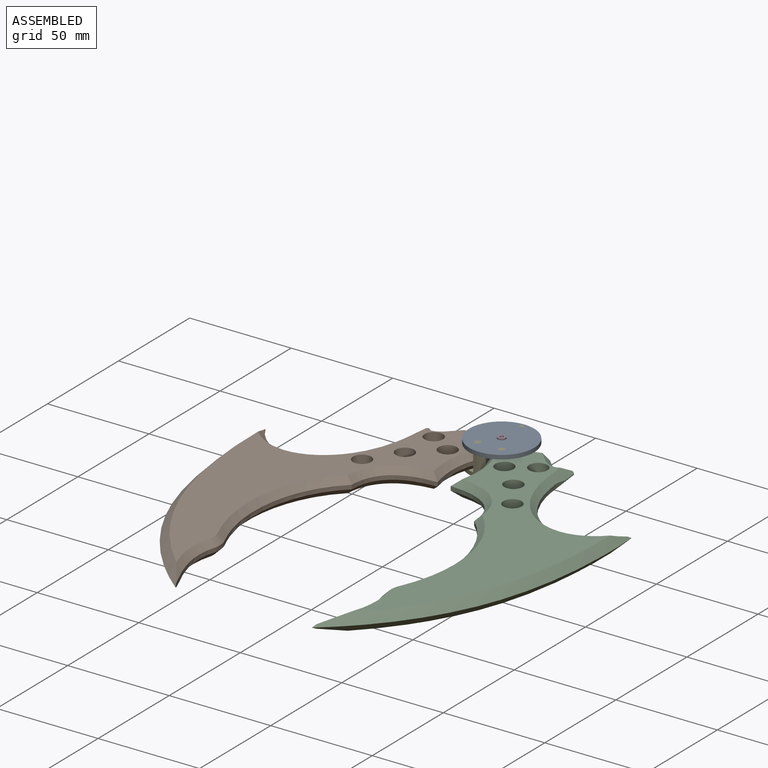
[diagram: assembled view]
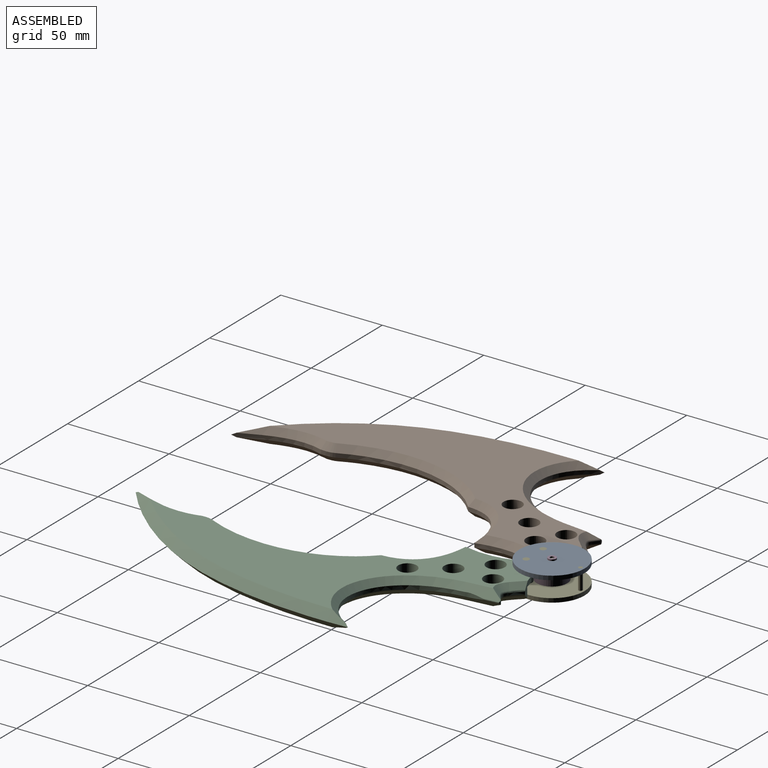
[diagram: assembled view, second angle]
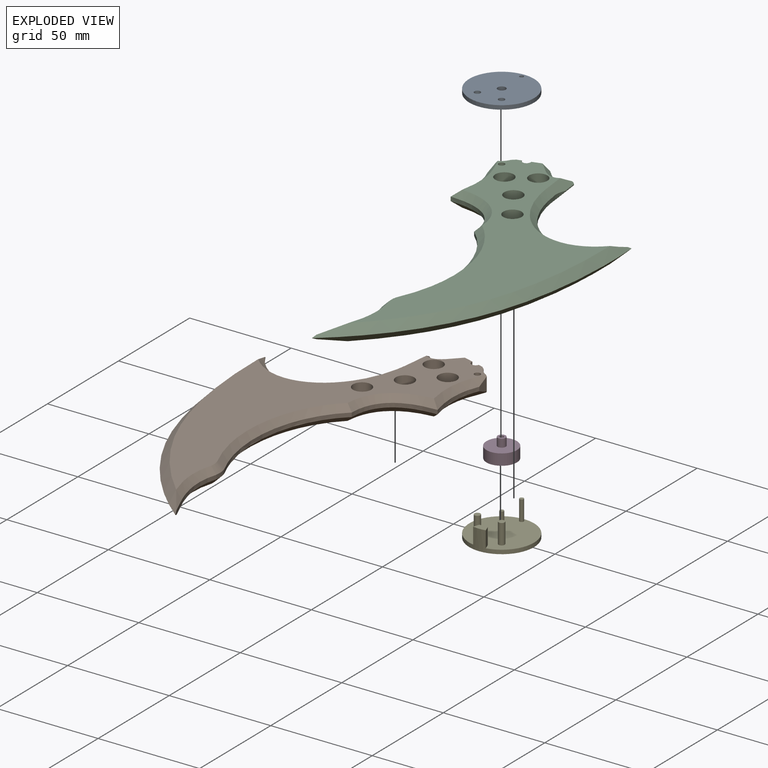
[diagram: exploded view]
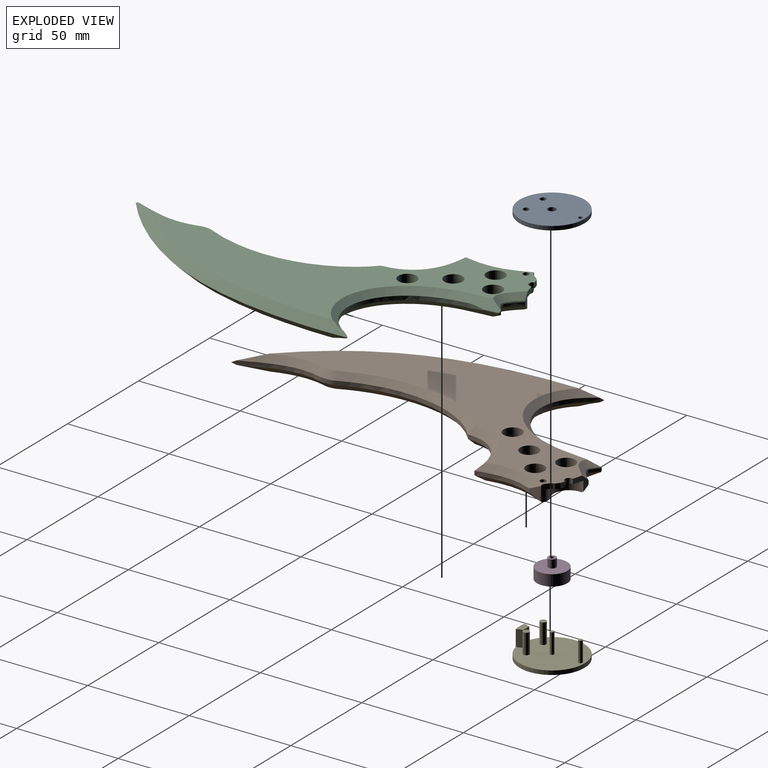
[diagram: exploded view, second angle]
ASSEMBLY  parts=5 mates=5
PART A: 7 faces, bbox 32x32x2 mm
  f0: cylinder r=16mm len=32mm, axis (0,0,1), area 201.1mm2, adj f1,f2
  f1: plane 32x32mm, normal (0,0,-1), area 774.4mm2, adj f0,f3,f4,f5,f6
  f2: plane 32x32mm, normal (0,0,1), area 774.4mm2, adj f0,f3,f4,f5,f6
  f3: cylinder r=1mm len=2mm, axis (0,0,-1), area 12.6mm2, adj f1,f2
  f4: cylinder r=1.5mm len=3mm, axis (0,0,-1), area 18.8mm2, adj f1,f2
  f5: cylinder r=1.5mm len=3mm, axis (0,0,-1), area 18.8mm2, adj f1,f2
  f6: cylinder r=2mm len=4mm, axis (0,0,-1), area 25.1mm2, adj f1,f2
PART B: 50 faces, bbox 185.6x104.1x9.9 mm
  f0: plane 8.3x7.49mm, normal (1,0,0), area 25.6mm2, adj f2,f7,f9,f12,f19,f39,f40,f42
  f1: plane 2.5x2.38mm, normal (1,0,0), area 5.9mm2, adj f2,f4,f19,f49
  f2: plane 17.4x7.5mm, normal (0,0,-1), area 82.2mm2, adj f0,f1,f4,f7,f46,f47,f48,f49
  f3: plane 6.82x5.34mm, normal (0.32,-0.95,0), area 24.7mm2, adj f5,f8,f11,f46
  f4: plane 2.5x1.98mm, normal (0.9,-0.43,0), area 5.5mm2, adj f1,f2,f19,f46
  f5: bspline ~37.56x10.83mm, area 129.5mm2, adj f3,f11,f19,f34,f46
  f6: plane 171.03x78.62mm, normal (0,0,-1), area 4250.9mm2, adj f7,f8,f9,f20,f21,f22,f23,f24
  f7: cylinder r=7.5mm len=13.58mm, axis (0,0,-1), area 103.5mm2, adj f0,f2,f6,f9,f47
  f8: bspline ~37.56x10.83mm, area 129.5mm2, adj f3,f6,f11,f30,f46
  f9: bspline ~14.45x13.37mm, area 61.2mm2, adj f0,f6,f7,f36,f37,f40
  f10: extruded ~8.72x2.28mm, area 11.2mm2, adj f14,f35,f36,f45
  f11: extruded ~26.97x6.88mm, area 56.7mm2, adj f3,f5,f8,f18
  f12: extruded ~9.03x8.11mm, area 15.8mm2, adj f0,f13,f40,f42
  f13: plane 2.07x1.17mm, normal (0.92,-0.39,0), area 2.6mm2, adj f12,f41,f43,f44
  f14: extruded ~46.13x44.13mm, area 159.3mm2, adj f10,f25,f26,f35,f36
  f15: extruded ~35.66x17.73mm, area 79.5mm2, adj f16,f25,f26,f27,f31
  f16: extruded ~6.23x2.48mm, area 13.6mm2, adj f15,f17,f28,f32
  f17: extruded ~73.6x17.2mm, area 158.5mm2, adj f16,f18,f29,f33
  f18: extruded ~28.5x20.78mm, area 78.6mm2, adj f11,f17,f30,f34
  f19: plane 172.13x78.79mm, normal (0,0,1), area 4357.4mm2, adj f0,f1,f4,f5,f20,f21,f22,f23
  f20: cylinder r=4.5mm len=9mm, axis (0,0,1), area 226.2mm2, adj f6,f19
  f21: cylinder r=4.5mm len=9mm, axis (0,0,1), area 226.2mm2, adj f6,f19
  f22: cylinder r=4.5mm len=9mm, axis (0,0,1), area 226.2mm2, adj f6,f19
  f23: cylinder r=4.5mm len=9mm, axis (0,0,1), area 226.2mm2, adj f6,f19
  f24: cylinder r=1.5mm len=8mm, axis (0,0,1), area 75.4mm2, adj f6,f19
  f25: bspline ~133.25x101.36mm, area 840.4mm2, adj f14,f15,f19,f26,f31,f35
  f26: bspline ~129.69x100.58mm, area 840.5mm2, adj f6,f14,f15,f25,f27,f36
  f27: bspline ~35.95x19.34mm, area 140mm2, adj f6,f15,f26,f28
  f28: bspline ~7.14x4.95mm, area 24.9mm2, adj f6,f16,f27,f29
  f29: bspline ~80.81x21.76mm, area 341.6mm2, adj f6,f17,f28,f30
  f30: bspline ~32.12x23.78mm, area 165.9mm2, adj f6,f8,f18,f29
  f31: bspline ~35.95x19.34mm, area 140mm2, adj f15,f19,f25,f32
  f32: bspline ~6.8x4.83mm, area 24.8mm2, adj f16,f19,f31,f33
  f33: bspline ~80.84x21.79mm, area 341.6mm2, adj f17,f19,f32,f34
  f34: bspline ~32.12x23.78mm, area 165.9mm2, adj f5,f18,f19,f33
  f35: bspline ~67.14x51.84mm, area 400.1mm2, adj f10,f14,f19,f25,f38,f39,f43,f44
  f36: bspline ~67.14x51.84mm, area 400.2mm2, adj f6,f9,f10,f14,f26,f37,f41,f44
  f37: plane 2.21x2.16mm, normal (0.65,-0.27,-0.71), area 2.3mm2, adj f9,f36,f41
  f38: plane 2.21x2.16mm, normal (0.65,-0.27,0.71), area 2.3mm2, adj f35,f39,f43
  f39: bspline ~13.51x12.36mm, area 61.8mm2, adj f0,f19,f35,f38,f42
  f40: bspline ~10.09x9.12mm, area 10.8mm2, adj f0,f9,f12,f41
  f41: cylinder r=1mm len=2.65mm, axis (0.39,0.92,0), area 2mm2, adj f13,f36,f37,f40,f44
  f42: bspline ~10.41x9.52mm, area 10.8mm2, adj f0,f12,f39,f43
  f43: cylinder r=1mm len=2.65mm, axis (0.39,0.92,0), area 2mm2, adj f13,f35,f38,f42,f44
  f44: cylinder r=1mm len=2.16mm, axis (0,0,-1), area 2.1mm2, adj f13,f35,f36,f41,f43,f45
  f45: bspline ~13.8x2.68mm, area 5.9mm2, adj f10,f35,f36,f44
  f46: cylinder r=7.5mm len=8mm, axis (0,0,-1), area 24.6mm2, adj f2,f3,f4,f5,f6,f8,f19,f48
  f47: plane 5.5x1.99mm, normal (0.9,0.43,0), area 12.2mm2, adj f2,f6,f7,f48
  f48: cylinder r=2.5mm len=5.5mm, axis (0,0,-1), area 10.3mm2, adj f2,f6,f46,f47
  f49: cylinder r=2mm len=4mm, axis (0,0,-1), area 15.7mm2, adj f0,f1,f2,f19
PART C: 50 faces, bbox 185.6x104.1x9.9 mm
  f0: plane 8.3x7.49mm, normal (-1,0,0), area 25.6mm2, adj f2,f7,f9,f12,f19,f39,f40,f42
  f1: plane 2.5x2.38mm, normal (-1,0,0), area 5.9mm2, adj f2,f4,f19,f49
  f2: plane 17.4x7.5mm, normal (0,0,-1), area 82.2mm2, adj f0,f1,f4,f7,f46,f47,f48,f49
  f3: plane 6.82x5.34mm, normal (-0.32,-0.95,0), area 24.7mm2, adj f5,f8,f11,f46
  f4: plane 2.5x1.98mm, normal (-0.9,-0.43,0), area 5.5mm2, adj f1,f2,f19,f46
  f5: bspline ~37.56x10.83mm, area 129.5mm2, adj f3,f11,f19,f34,f46
  f6: plane 170.42x77.71mm, normal (0,0,-1), area 4250.9mm2, adj f7,f8,f9,f20,f21,f22,f23,f24
  f7: cylinder r=7.5mm len=13.58mm, axis (0,0,-1), area 103.5mm2, adj f0,f2,f6,f9,f47
  f8: bspline ~37.56x10.83mm, area 129.5mm2, adj f3,f6,f11,f30,f46
  f9: bspline ~14.45x13.37mm, area 61.2mm2, adj f0,f6,f7,f36,f37,f40
  f10: extruded ~8.72x2.28mm, area 11.2mm2, adj f14,f35,f36,f45
  f11: extruded ~26.97x6.88mm, area 56.7mm2, adj f3,f5,f8,f18
  f12: extruded ~9.03x8.11mm, area 15.8mm2, adj f0,f13,f40,f42
  f13: plane 2.07x1.17mm, normal (-0.92,-0.39,0), area 2.6mm2, adj f12,f41,f43,f44
  f14: extruded ~46.13x44.13mm, area 159.1mm2, adj f10,f25,f26,f35,f36
  f15: extruded ~35.66x17.73mm, area 79.5mm2, adj f16,f25,f26,f27,f31
  f16: extruded ~6.23x2.48mm, area 13.6mm2, adj f15,f17,f28,f32
  f17: extruded ~73.6x17.2mm, area 158.5mm2, adj f16,f18,f29,f33
  f18: extruded ~28.5x20.78mm, area 78.6mm2, adj f11,f17,f30,f34
  f19: plane 171.67x77.86mm, normal (0,0,1), area 4357.4mm2, adj f0,f1,f4,f5,f20,f21,f22,f23
  f20: cylinder r=4.5mm len=9mm, axis (0,0,1), area 226.2mm2, adj f6,f19
  f21: cylinder r=4.5mm len=9mm, axis (0,0,1), area 226.2mm2, adj f6,f19
  f22: cylinder r=4.5mm len=9mm, axis (0,0,1), area 226.2mm2, adj f6,f19
  f23: cylinder r=4.5mm len=9mm, axis (0,0,1), area 226.2mm2, adj f6,f19
  f24: cylinder r=1.5mm len=8mm, axis (0,0,1), area 75.4mm2, adj f6,f19
  f25: bspline ~133.25x101.36mm, area 840.4mm2, adj f14,f15,f19,f26,f31,f35
  f26: bspline ~123.88x95.73mm, area 840.7mm2, adj f6,f14,f15,f25,f27,f36
  f27: bspline ~35.95x19.34mm, area 140mm2, adj f6,f15,f26,f28
  f28: bspline ~7.14x4.95mm, area 24.9mm2, adj f6,f16,f27,f29
  f29: bspline ~77.16x20.19mm, area 341.6mm2, adj f6,f17,f28,f30
  f30: bspline ~33.95x25.96mm, area 165.9mm2, adj f6,f8,f18,f29
  f31: bspline ~35.95x19.34mm, area 140mm2, adj f15,f19,f25,f32
  f32: bspline ~6.8x4.83mm, area 24.9mm2, adj f16,f19,f31,f33
  f33: bspline ~80.84x21.79mm, area 341.6mm2, adj f17,f19,f32,f34
  f34: bspline ~33.95x25.96mm, area 165.9mm2, adj f5,f18,f19,f33
  f35: bspline ~67.14x51.84mm, area 398.9mm2, adj f10,f14,f19,f25,f38,f39,f43,f44
  f36: bspline ~67.14x51.84mm, area 399mm2, adj f6,f9,f10,f14,f26,f37,f41,f44
  f37: plane 2.21x2.16mm, normal (-0.65,-0.27,-0.71), area 2.3mm2, adj f9,f36,f41
  f38: plane 2.21x2.16mm, normal (-0.65,-0.27,0.71), area 2.3mm2, adj f35,f39,f43
  f39: bspline ~14.45x13.37mm, area 61.8mm2, adj f0,f19,f35,f38,f42
  f40: bspline ~10.09x9.12mm, area 10.8mm2, adj f0,f9,f12,f41
  f41: cylinder r=1mm len=2.65mm, axis (-0.39,0.92,0), area 2mm2, adj f13,f36,f37,f40,f44
  f42: bspline ~10.41x9.52mm, area 10.8mm2, adj f0,f12,f39,f43
  f43: cylinder r=1mm len=2.65mm, axis (-0.39,0.92,0), area 2mm2, adj f13,f35,f38,f42,f44
  f44: cylinder r=1mm len=2.16mm, axis (0,0,-1), area 2.1mm2, adj f13,f35,f36,f41,f43,f45
  f45: bspline ~13.8x2.68mm, area 5.9mm2, adj f10,f35,f36,f44
  f46: cylinder r=7.5mm len=8mm, axis (0,0,-1), area 24.6mm2, adj f2,f3,f4,f5,f6,f8,f19,f48
  f47: plane 5.5x1.99mm, normal (-0.9,0.43,0), area 12.2mm2, adj f2,f6,f7,f48
  f48: cylinder r=2.5mm len=5.5mm, axis (0,0,-1), area 10.3mm2, adj f2,f6,f46,f47
  f49: cylinder r=2mm len=4mm, axis (0,0,-1), area 15.7mm2, adj f0,f1,f2,f19
PART D: 6 faces, bbox 15x15x9.5 mm
  f0: cylinder r=7.5mm len=15mm, axis (0,0,-1), area 259.2mm2, adj f1,f2
  f1: plane 15x15mm, normal (0,0,1), area 164.1mm2, adj f0,f5
  f2: plane 15x15mm, normal (0,0,-1), area 173.6mm2, adj f0,f3
  f3: cylinder r=1mm len=9.5mm, axis (0,0,-1), area 59.7mm2, adj f2,f4
  f4: plane 4x4mm, normal (0,0,1), area 9.4mm2, adj f3,f5
  f5: cylinder r=2mm len=4mm, axis (0,0,-1), area 50.3mm2, adj f1,f4
PART E: 15 faces, bbox 32x32x12 mm
  f0: plane 32x31.69mm, normal (0,0,1), area 767.1mm2, adj f1,f3,f5,f7,f9,f10,f11,f13
  f1: cylinder r=16mm len=32mm, axis (0,0,1), area 251.3mm2, adj f0,f2,f9,f11,f12
  f2: plane 32x32mm, normal (0,0,-1), area 804.2mm2, adj f1
  f3: cylinder r=1.5mm len=10mm, axis (0,0,-1), area 94.2mm2, adj f0,f4
  f4: plane 3x3mm, normal (0,0,1), area 7.1mm2, adj f3
  f5: cylinder r=1.5mm len=10mm, axis (0,0,-1), area 94.2mm2, adj f0,f6
  f6: plane 3x3mm, normal (0,0,1), area 7.1mm2, adj f5
  f7: cylinder r=1mm len=10mm, axis (0,0,-1), area 62.8mm2, adj f0,f8
  f8: plane 2x2mm, normal (0,0,1), area 3.1mm2, adj f7
  f9: plane 8x2.99mm, normal (0.94,0.34,0), area 25.4mm2, adj f0,f1,f10,f12
  f10: plane 8x4.08mm, normal (0,1,0), area 32.7mm2, adj f0,f9,f11,f12
  f11: plane 8x2.99mm, normal (-0.94,0.34,0), area 25.4mm2, adj f0,f1,f10,f12
  f12: plane 6.23x3.29mm, normal (0,0,1), area 16.7mm2, adj f1,f9,f10,f11
  f13: cylinder r=1mm len=10mm, axis (0,0,-1), area 62.8mm2, adj f0,f14
  f14: plane 2x2mm, normal (0,0,1), area 3.1mm2, adj f13
PLACE A t=(-53.09,-73.55,67.35)mm
PLACE B rot(axis=(0,0,1),74deg) t=(33.42,28.67,67.35)mm
PLACE C rot(axis=(0,0,-1),74deg) t=(-166.57,-7.13,67.35)mm
PLACE D t=(-53.09,-73.55,68.55)mm
PLACE E t=(-53.09,-73.55,67.35)mm
MATE cylindrical E.f1 <-> D.f0  axis (0,0,-1) through (-71.71,43.53,67.35)mm
MATE cylindrical A.f4 <-> E.f5  axis (0,0,1) through (-65.75,34.96,77.35)mm
MATE cylindrical E.f5 <-> C.f24  axis (0,0,1) through (-65.75,34.96,77.35)mm
MATE cylindrical E.f3 <-> B.f24  axis (0,0,1) through (-77.66,34.96,77.35)mm
MATE cylindrical A.f5 <-> B.f24  axis (0,0,-1) through (-77.66,34.96,75.35)mm
